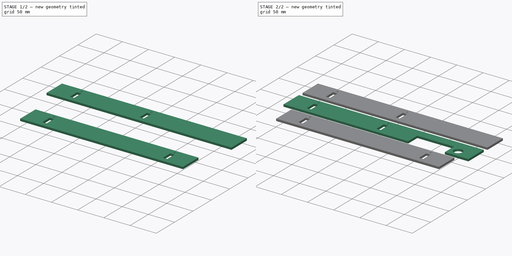
[diagram: build sequence overview — one tinted view per stage of 2, left to right]
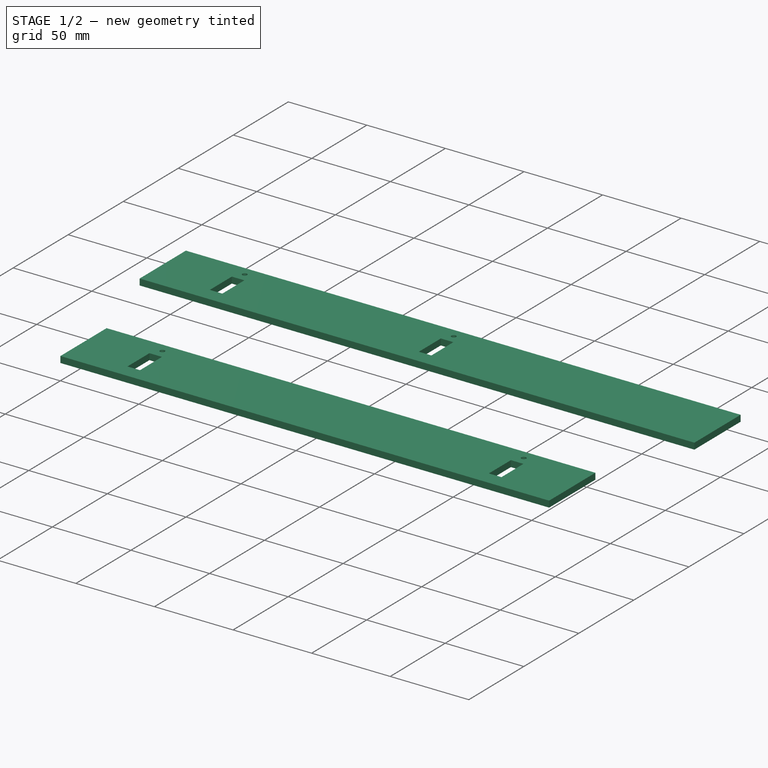
[diagram: stage 1 of 2 — iso view after this stage's code; geometry added in this stage tinted green]
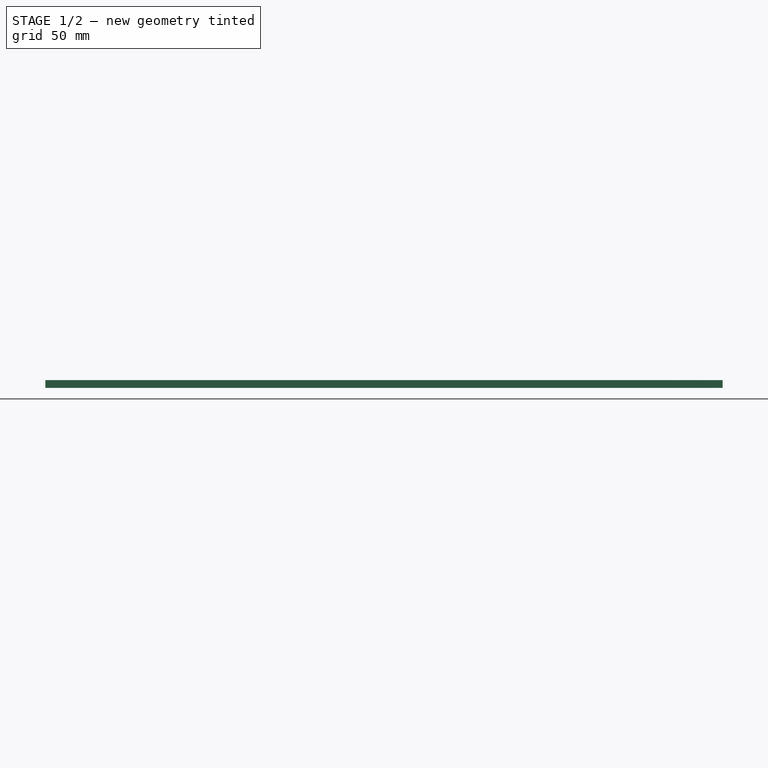
[diagram: stage 1 of 2 — front view after this stage's code; geometry added in this stage tinted green]
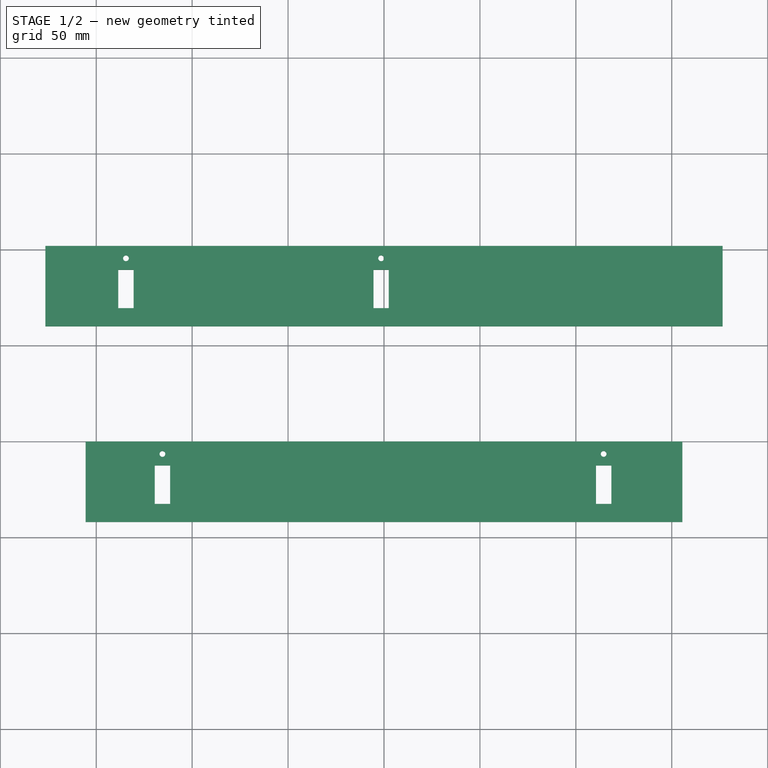
[diagram: stage 1 of 2 — top view after this stage's code; geometry added in this stage tinted green]
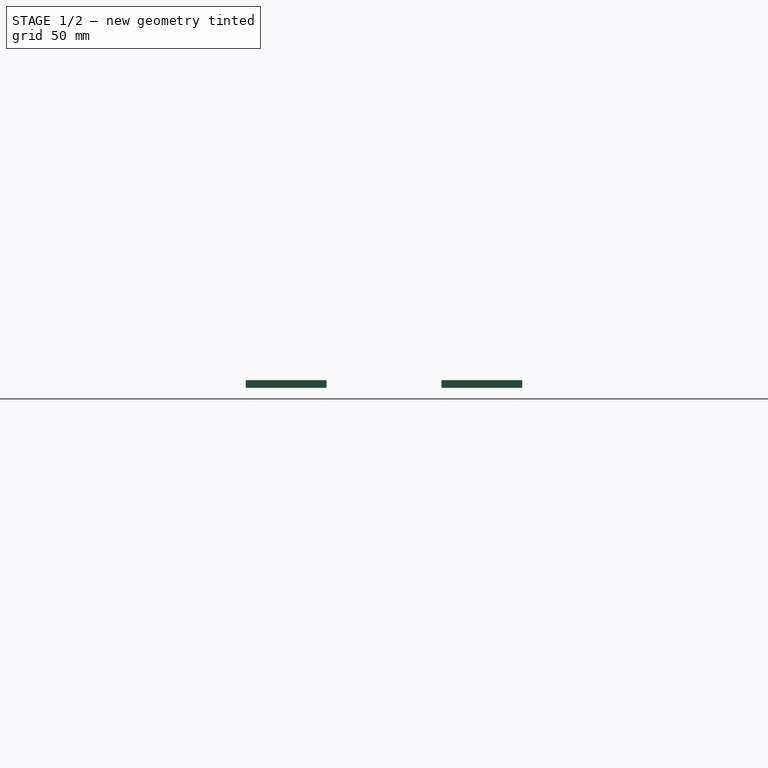
[diagram: stage 1 of 2 — right view after this stage's code; geometry added in this stage tinted green]
FCSTD DOCUMENT  (FreeCAD 0.19R24291 (Git))
Label: Walls
License: All rights reserved
LicenseURL: http://en.wikipedia.org/wiki/All_rights_reserved
objects: Sketcher::SketchObject×3, PartDesign::Pad×3, PartDesign::Body×3, TechDraw::DrawSVGTemplate×1, TechDraw::DrawViewPart×1, TechDraw::DrawPage×1
note: 12 computed .brp shape members not serialized (recipe doc carries the construction recipe); baked Part::Feature solids carry a one-line shape summary decoded from their .brp

FEATURE [PartDesign::Body] Body  label="Left"
  Group = -> [Sketch,Pad]
  Origin = -> Origin
  Tip = -> Pad
FEATURE [Sketcher::SketchObject] Sketch001
  FullyConstrained = true
  MapMode = 5
  Support = -> [XY_Plane001]
  sketch-geometry (14):
    g0: LineSegment StartX=-176.5 StartY=52 StartZ=0 EndX=176.5 EndY=52 EndZ=0
    g1: LineSegment StartX=176.5 StartY=52 StartZ=0 EndX=176.5 EndY=10 EndZ=0
    g2: LineSegment StartX=176.5 StartY=10 StartZ=0 EndX=-176.5 EndY=10 EndZ=0
    g3: LineSegment StartX=-176.5 StartY=10 StartZ=0 EndX=-176.5 EndY=52 EndZ=0
    g4: LineSegment StartX=-138.5 StartY=39.5 StartZ=0 EndX=-130.5 EndY=39.5 EndZ=0
    g5: LineSegment StartX=-130.5 StartY=39.5 StartZ=0 EndX=-130.5 EndY=19.5 EndZ=0
    g6: LineSegment StartX=-130.5 StartY=19.5 StartZ=0 EndX=-138.5 EndY=19.5 EndZ=0
    g7: LineSegment StartX=-138.5 StartY=19.5 StartZ=0 EndX=-138.5 EndY=39.5 EndZ=0
    g8: LineSegment StartX=-5.5 StartY=39.5 StartZ=0 EndX=2.5 EndY=39.5 EndZ=0
    g9: LineSegment StartX=2.5 StartY=39.5 StartZ=0 EndX=2.5 EndY=19.5 EndZ=0
    g10: LineSegment StartX=2.5 StartY=19.5 StartZ=0 EndX=-5.5 EndY=19.5 EndZ=0
    g11: LineSegment StartX=-5.5 StartY=19.5 StartZ=0 EndX=-5.5 EndY=39.5 EndZ=0
    g12: Circle CenterX=-134.5 CenterY=45.5 CenterZ=0 NormalX=0 NormalY=0 NormalZ=1 AngleXU=0 Radius=1.5
    g13: Circle CenterX=-1.5 CenterY=45.5 CenterZ=0 NormalX=0 NormalY=0 NormalZ=1 AngleXU=0 Radius=1.5
  constraints (41):
    c: Coincident(g0,g1)
    c: Coincident(g1,g2)
    c: Coincident(g2,g3)
    c: Coincident(g3,g0)
    c: Horizontal(g0)
    c: Vertical(g1)
    c: Vertical(g3)
    c: DistanceX(g0,g0) = 353
    c: Symmetric(g1,g2,g-2)
    c: DistanceY(g1,g1) = 42
    c: Coincident(g4,g5)
    c: Coincident(g5,g6)
    c: Coincident(g6,g7)
    c: Coincident(g7,g4)
    c: Horizontal(g4)
    c: Horizontal(g6)
    c: Vertical(g5)
    c: Vertical(g7)
    c: Coincident(g8,g9)
    c: Coincident(g9,g10)
    c: Coincident(g10,g11)
    c: Coincident(g11,g8)
    c: Horizontal(g8)
    c: Horizontal(g10)
    c: Vertical(g9)
    c: Vertical(g11)
    c: DistanceX(g4,g4) = 8
    c: DistanceY(g7,g7) = 20
    c: Equal(g4,g8)
    c: Equal(g7,g11)
    c: DistanceX(g0,g4) = 38
    c: DistanceX(g0,g8) = 171
    c: DistanceY(g4,g0) = 12.5
    c: DistanceY(g8,g0) = 12.5
    c: DistanceY(g-1,g2) = 10
    c: Diameter(g12) = 3
    c: Equal(g13,g12)
    c: DistanceX(g4,g12) = 4
    c: DistanceY(g4,g12) = 6
    c: DistanceX(g8,g13) = 4
    c: DistanceY(g8,g13) = 6
FEATURE [PartDesign::Pad] Pad001
  Direction = (1,1,1)
  Length = 4
  Length2 = 100
  Profile = -> Sketch001
  Refine = true
  Type = 0
FEATURE [PartDesign::Body] Body001  label="Right"
  Group = -> [Sketch001,Pad001]
  Origin = -> Origin001
  Tip = -> Pad001
FEATURE [Sketcher::SketchObject] Sketch002
  FullyConstrained = true
  MapMode = 5
  Support = -> [XY_Plane002]
  sketch-geometry (14):
    g0: LineSegment StartX=-155.5 StartY=-50 StartZ=0 EndX=155.5 EndY=-50 EndZ=0
    g1: LineSegment StartX=155.5 StartY=-50 StartZ=0 EndX=155.5 EndY=-92 EndZ=0
    g2: LineSegment StartX=155.5 StartY=-92 StartZ=0 EndX=-155.5 EndY=-92 EndZ=0
    g3: LineSegment StartX=-155.5 StartY=-92 StartZ=0 EndX=-155.5 EndY=-50 EndZ=0
    g4: LineSegment StartX=-119.5 StartY=-62.5 StartZ=0 EndX=-111.5 EndY=-62.5 EndZ=0
    g5: LineSegment StartX=-111.5 StartY=-62.5 StartZ=0 EndX=-111.5 EndY=-82.5 EndZ=0
    g6: LineSegment StartX=-111.5 StartY=-82.5 StartZ=0 EndX=-119.5 EndY=-82.5 EndZ=0
    g7: LineSegment StartX=-119.5 StartY=-82.5 StartZ=0 EndX=-119.5 EndY=-62.5 EndZ=0
    g8: LineSegment StartX=110.5 StartY=-62.5 StartZ=0 EndX=118.5 EndY=-62.5 EndZ=0
    g9: LineSegment StartX=118.5 StartY=-62.5 StartZ=0 EndX=118.5 EndY=-82.5 EndZ=0
    g10: LineSegment StartX=118.5 StartY=-82.5 StartZ=0 EndX=110.5 EndY=-82.5 EndZ=0
    g11: LineSegment StartX=110.5 StartY=-82.5 StartZ=0 EndX=110.5 EndY=-62.5 EndZ=0
    g12: Circle CenterX=-115.5 CenterY=-56.5 CenterZ=0 NormalX=0 NormalY=0 NormalZ=1 AngleXU=0 Radius=1.5
    g13: Circle CenterX=114.5 CenterY=-56.5 CenterZ=0 NormalX=0 NormalY=0 NormalZ=1 AngleXU=0 Radius=1.5
  constraints (41):
    c: Coincident(g0,g1)
    c: Coincident(g1,g2)
    c: Coincident(g2,g3)
    c: Coincident(g3,g0)
    c: Horizontal(g2)
    c: Vertical(g1)
    c: Vertical(g3)
    c: DistanceY(g1,g1) = 42
    c: DistanceX(g0,g0) = 311
    c: Symmetric(g0,g0,g-2)
    c: DistanceY(g0,g-1) = 50
    c: Coincident(g4,g5)
    c: Coincident(g5,g6)
    c: Coincident(g6,g7)
    c: Coincident(g7,g4)
    c: Horizontal(g4)
    c: Horizontal(g6)
    c: Vertical(g5)
    c: Vertical(g7)
    c: Coincident(g8,g9)
    c: Coincident(g9,g10)
    c: Coincident(g10,g11)
    c: Coincident(g11,g8)
    c: Horizontal(g8)
    c: Horizontal(g10)
    c: Vertical(g9)
    c: Vertical(g11)
    c: DistanceX(g4,g4) = 8
    c: DistanceY(g7,g7) = 20
    c: Equal(g8,g4)
    c: Equal(g7,g11)
    c: DistanceY(g4,g0) = 12.5
    c: DistanceX(g8,g0) = 37
    c: DistanceY(g8,g0) = 12.5
    c: DistanceX(g0,g4) = 36
    c: Diameter(g12) = 3
    c: Equal(g12,g13)
    c: DistanceX(g4,g12) = 4
    c: DistanceY(g4,g12) = 6
    c: DistanceY(g8,g13) = 6
    c: DistanceX(g8,g13) = 4
FEATURE [PartDesign::Pad] Pad002
  Direction = (1,1,1)
  Length = 4
  Length2 = 100
  Profile = -> Sketch002
  Refine = true
  Type = 0
FEATURE [PartDesign::Body] Body002  label="Up"
  Group = -> [Sketch002,Pad002]
  Origin = -> Origin002
  Tip = -> Pad002
FEATURE [TechDraw::DrawSVGTemplate] Template
  Height = 297
  Orientation = 1
  Width = 420
FEATURE [TechDraw::DrawViewPart] View
  CoarseView = false
  Direction = (0,0,1)
  Focus = 100
  HardHidden = false
  IsoCount = 0
  IsoHidden = false
  IsoVisible = false
  LockPosition = false
  Perspective = false
  Rotation = 0
  ScaleType = 0
  SeamHidden = false
  SeamVisible = true
  SmoothHidden = false
  SmoothVisible = true
  Source = -> [Body,Body001,Body002,Origin,Pad,Sketch]
  X = 210
  XDirection = (1,0,0)
  Y = 148.5
FEATURE [TechDraw::DrawPage] Page
  KeepUpdated = true
  NextBalloonIndex = 1
  ProjectionType = 0
  Template = -> Template
  Views = -> [View]
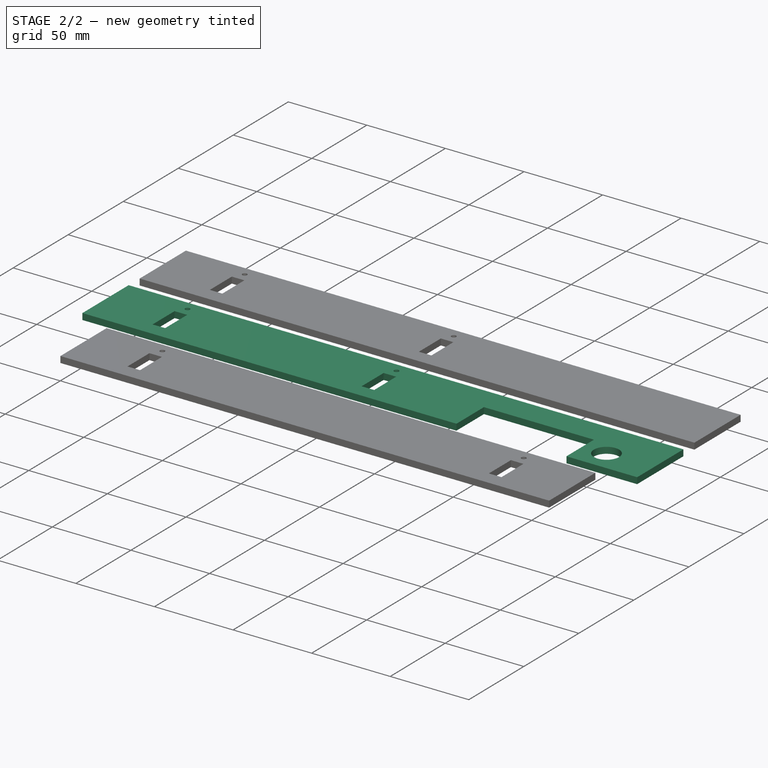
[diagram: stage 2 of 2 — iso view after this stage's code; geometry added in this stage tinted green]
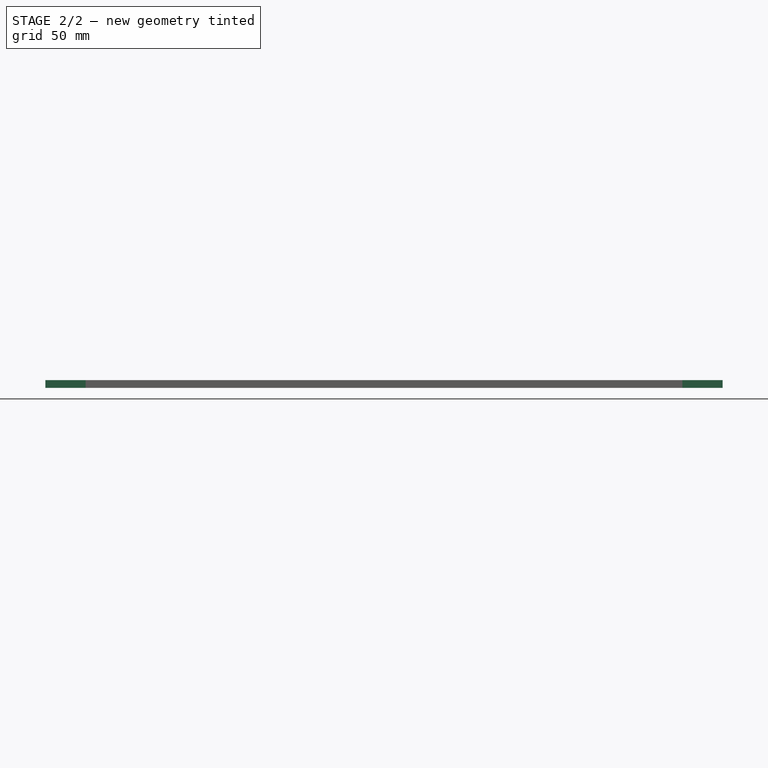
[diagram: stage 2 of 2 — front view after this stage's code; geometry added in this stage tinted green]
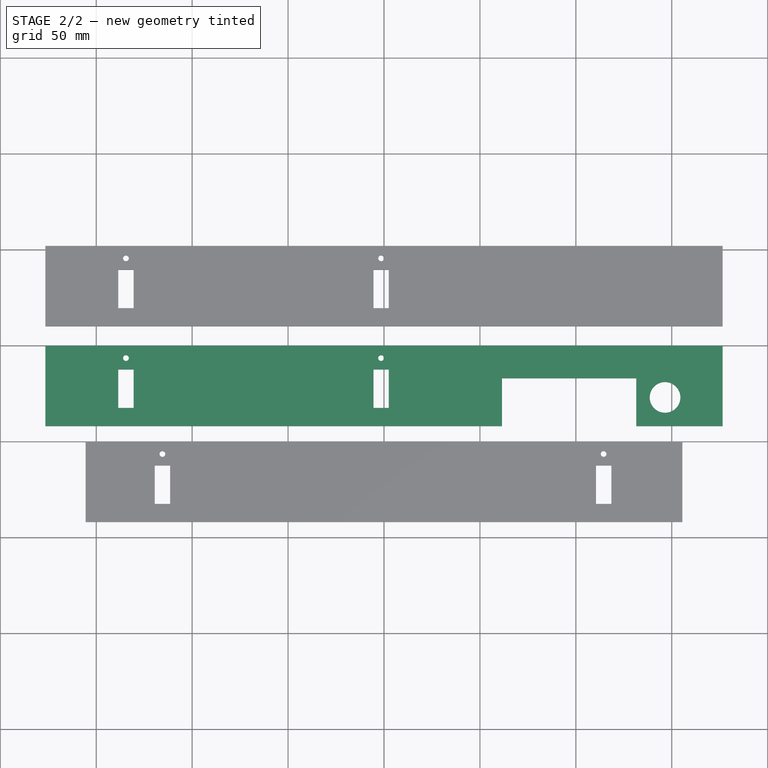
[diagram: stage 2 of 2 — top view after this stage's code; geometry added in this stage tinted green]
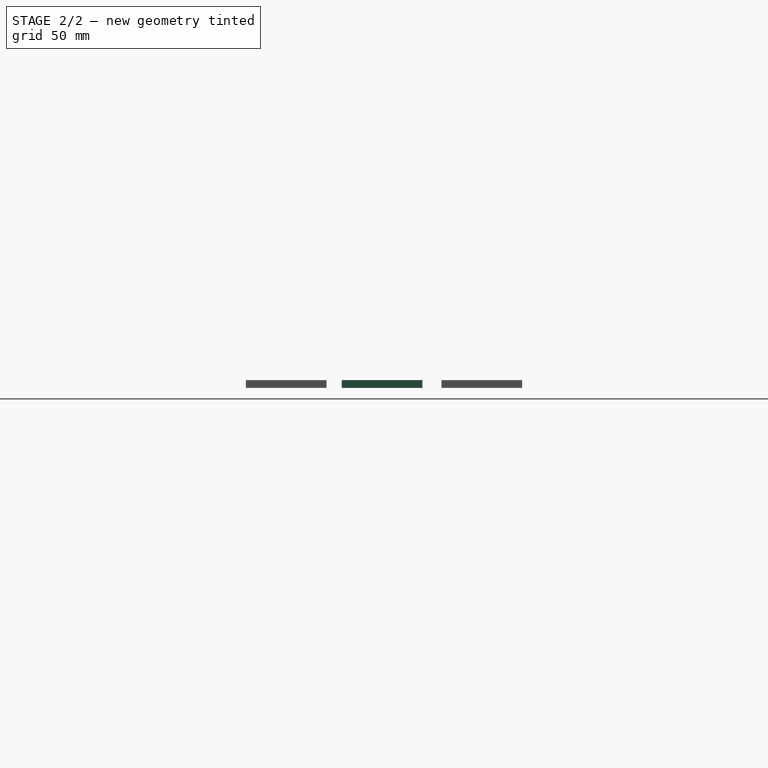
[diagram: stage 2 of 2 — right view after this stage's code; geometry added in this stage tinted green]
FEATURE [Sketcher::SketchObject] Sketch
  FullyConstrained = true
  MapMode = 5
  Support = -> [XY_Plane]
  sketch-geometry (19):
    g0: LineSegment StartX=-176.5 StartY=0 StartZ=0 EndX=176.5 EndY=0 EndZ=0
    g1: LineSegment StartX=176.5 StartY=0 StartZ=0 EndX=176.5 EndY=-42 EndZ=0
    g2: LineSegment StartX=176.5 StartY=-42 StartZ=0 EndX=131.5 EndY=-42 EndZ=0
    g3: LineSegment StartX=131.5 StartY=-42 StartZ=0 EndX=131.5 EndY=-17 EndZ=0
    g4: LineSegment StartX=131.5 StartY=-17 StartZ=0 EndX=61.5 EndY=-17 EndZ=0
    g5: LineSegment StartX=61.5 StartY=-17 StartZ=0 EndX=61.5 EndY=-42 EndZ=0
    g6: LineSegment StartX=61.5 StartY=-42 StartZ=0 EndX=-176.5 EndY=-42 EndZ=0
    g7: LineSegment StartX=-176.5 StartY=-42 StartZ=0 EndX=-176.5 EndY=0 EndZ=0
    g8: LineSegment StartX=-138.5 StartY=-12.5 StartZ=0 EndX=-130.5 EndY=-12.5 EndZ=0
    g9: LineSegment StartX=-130.5 StartY=-12.5 StartZ=0 EndX=-130.5 EndY=-32.5 EndZ=0
    g10: LineSegment StartX=-130.5 StartY=-32.5 StartZ=0 EndX=-138.5 EndY=-32.5 EndZ=0
    g11: LineSegment StartX=-138.5 StartY=-32.5 StartZ=0 EndX=-138.5 EndY=-12.5 EndZ=0
    g12: LineSegment StartX=2.5 StartY=-12.5 StartZ=0 EndX=-5.5 EndY=-12.5 EndZ=0
    g13: LineSegment StartX=-5.5 StartY=-12.5 StartZ=0 EndX=-5.5 EndY=-32.5 EndZ=0
    g14: LineSegment StartX=-5.5 StartY=-32.5 StartZ=0 EndX=2.5 EndY=-32.5 EndZ=0
    g15: LineSegment StartX=2.5 StartY=-32.5 StartZ=0 EndX=2.5 EndY=-12.5 EndZ=0
    g16: Circle CenterX=-134.5 CenterY=-6.5 CenterZ=0 NormalX=0 NormalY=0 NormalZ=1 AngleXU=0 Radius=1.5
    g17: Circle CenterX=-1.5 CenterY=-6.5 CenterZ=0 NormalX=0 NormalY=0 NormalZ=1 AngleXU=0 Radius=1.5
    g18: Circle CenterX=146.5 CenterY=-27 CenterZ=0 NormalX=0 NormalY=0 NormalZ=1 AngleXU=0 Radius=8
  constraints (56):
    c: Horizontal(g0)
    c: Coincident(g0,g1)
    c: Vertical(g1)
    c: Coincident(g1,g2)
    c: Horizontal(g2)
    c: Coincident(g2,g3)
    c: Vertical(g3)
    c: Coincident(g3,g4)
    c: Horizontal(g4)
    c: Coincident(g4,g5)
    c: Vertical(g5)
    c: Coincident(g5,g6)
    c: Horizontal(g6)
    c: Coincident(g6,g7)
    c: Coincident(g7,g0)
    c: Vertical(g7)
    c: DistanceY(g3,g3) = 25
    c: DistanceY(g1,g1) = 42
    c: Equal(g5,g3)
    c: DistanceX(g0,g0) = 353
    c: DistanceX(g4,g4) = 70
    c: DistanceX(g2,g2) = 45
    c: Symmetric(g0,g0,g-1)
    c: Coincident(g8,g9)
    c: Coincident(g9,g10)
    c: Coincident(g10,g11)
    c: Coincident(g11,g8)
    c: Horizontal(g8)
    c: Horizontal(g10)
    c: Vertical(g9)
    c: Vertical(g11)
    c: Coincident(g12,g13)
    c: Coincident(g13,g14)
    c: Coincident(g14,g15)
    c: Coincident(g15,g12)
    c: Horizontal(g12)
    c: Horizontal(g14)
    c: Vertical(g13)
    c: Vertical(g15)
    c: DistanceX(g8,g8) = 8
    c: Equal(g8,g12)
    c: DistanceY(g11,g11) = 20
    c: Equal(g11,g15)
    c: DistanceY(g8,g0) = 12.5
    c: DistanceY(g12,g0) = 12.5
    c: DistanceX(g0,g8) = 38
    c: Diameter(g16) = 3
    c: Equal(g17,g16)
    c: DistanceX(g8,g16) = 4
    c: DistanceY(g8,g16) = 6
    c: DistanceX(g12,g17) = 4
    c: DistanceY(g12,g17) = 6
    c: DistanceX(g0,g12) = 171
    c: Diameter(g18) = 16
    c: DistanceX(g3,g18) = 15
    c: DistanceY(g2,g18) = 15
FEATURE [PartDesign::Pad] Pad
  Direction = (1,1,1)
  Length = 4
  Length2 = 100
  Profile = -> Sketch
  Refine = true
  Type = 0
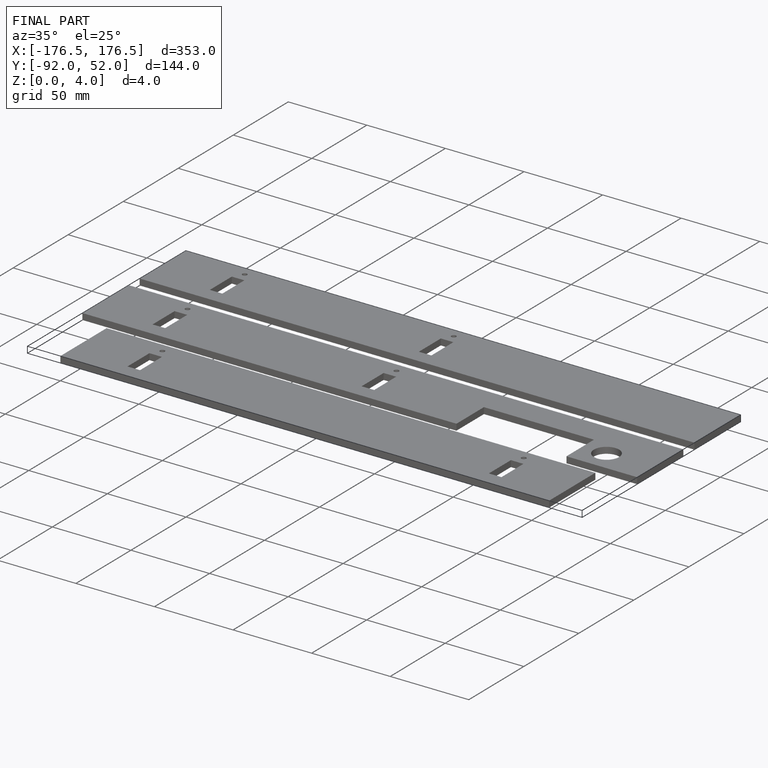
[diagram: finished part — iso view with bounding-box wireframe]
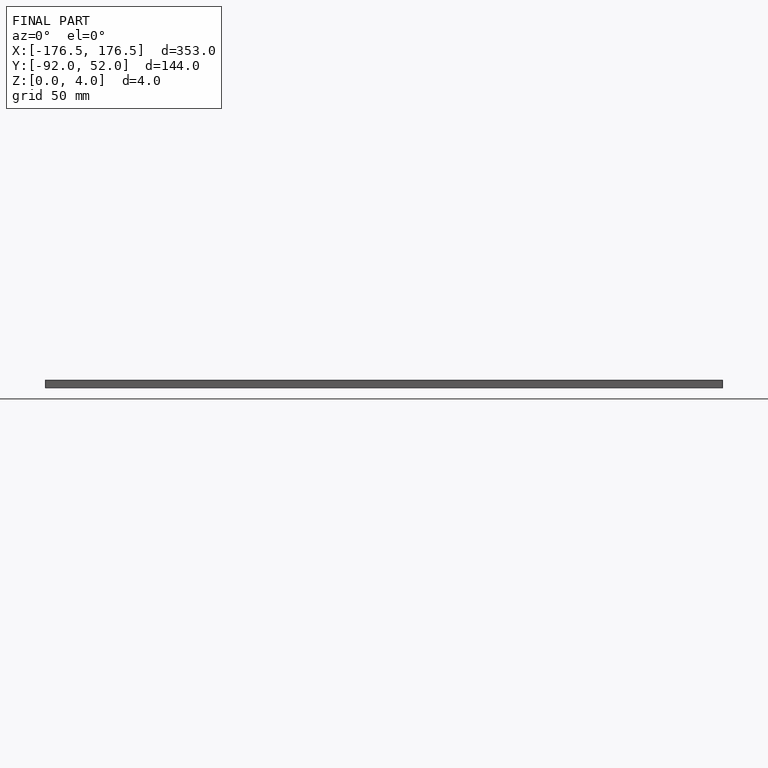
[diagram: finished part — front view with bounding-box wireframe]
